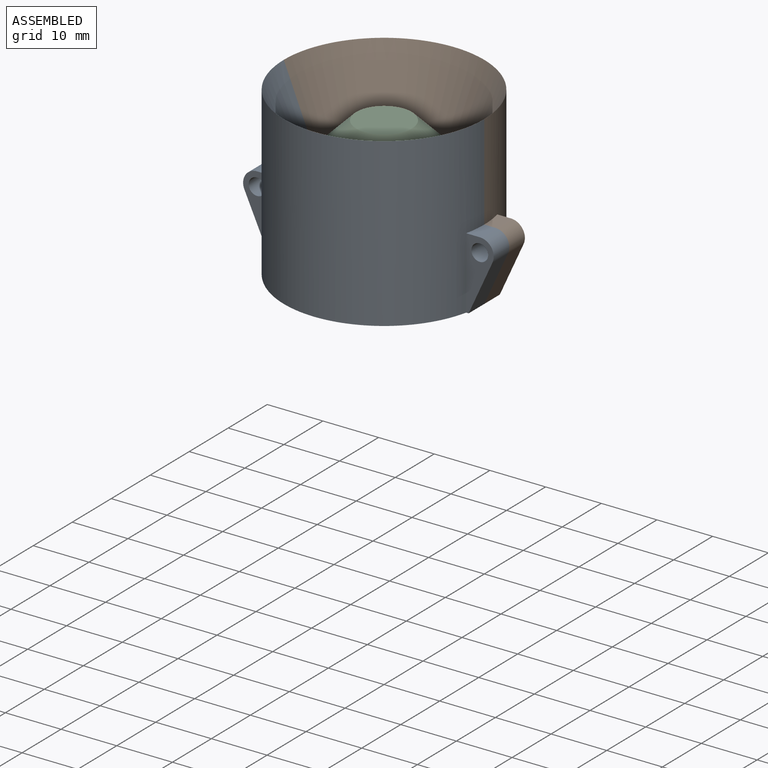
[diagram: assembled view]
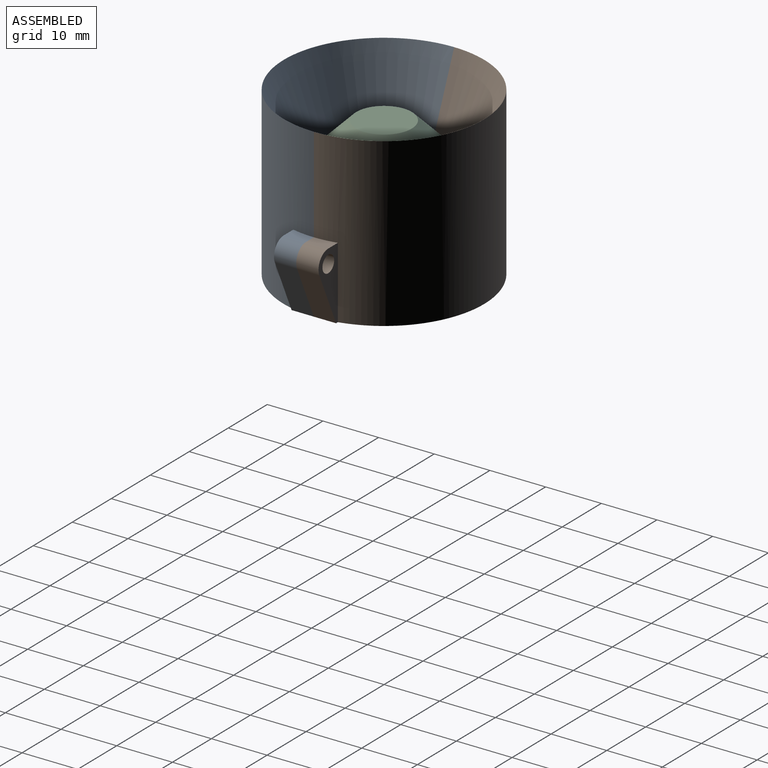
[diagram: assembled view, second angle]
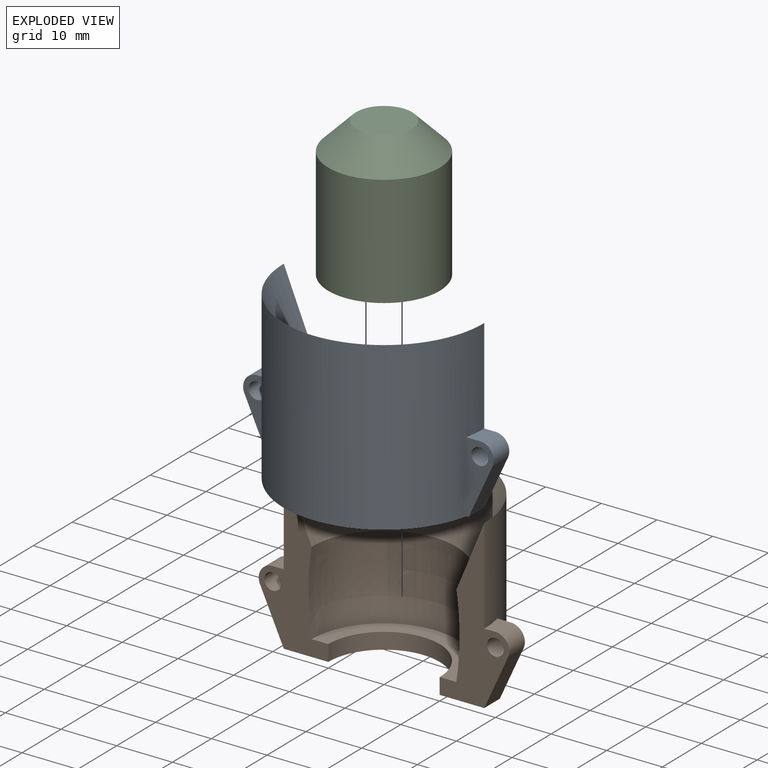
[diagram: exploded view]
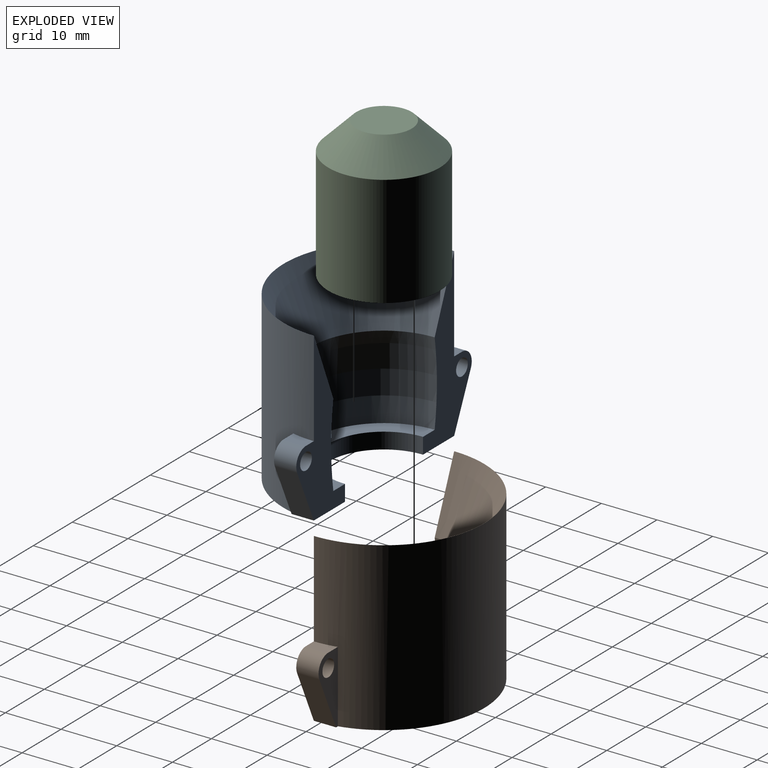
[diagram: exploded view, second angle]
FCSTD DOCUMENT  (FreeCAD 1.0R39109 (Git))
Label: WheelAssembley
License: All rights reserved
LicenseURL: https://en.wikipedia.org/wiki/All_rights_reserved
objects: App::Link×3, App::FeaturePython×3, Assembly::JointGroup×1, Assembly::AssemblyObject×1
EXTERNAL_REF file=wheeParts.FCStd obj=Body
EXTERNAL_REF file=wheeParts.FCStd obj=Body001

FEATURE [App::Link] Body
  LinkedObject = -> <external wheeParts.FCStd>#Body
FEATURE [App::FeaturePython] GroundedJoint  # Assembly grounded joint (typed FeaturePython)
  ObjectToGround = -> Body
FEATURE [App::Link] Body001
  LinkPlacement = pos=(0,0,0) rot=(0,0,1;3.14159rad)
  LinkedObject = -> <external wheeParts.FCStd>#Body
  Placement = pos=(0,0,0) rot=(0,0,1;3.14159rad)
FEATURE [App::Link] Body002
  LinkPlacement = pos=(-101.694,0,0) rot=(0,0,1;0rad)
  LinkedObject = -> <external wheeParts.FCStd>#Body001
  Placement = pos=(-101.694,0,0) rot=(0,0,1;0rad)
FEATURE [App::FeaturePython] Joint  label="Fixed"  # Assembly joint (typed FeaturePython)
  Activated = true
  AngleMax = 0
  AngleMin = 0
  Detach1 = false
  Detach2 = false
  Distance = 0
  Distance2 = 0
  EnableAngleMax = false
  EnableAngleMin = false
  EnableLengthMax = false
  EnableLengthMin = false
  JointType = 0 (Fixed)
  LengthMax = 0
  LengthMin = 0
  Placement1 = pos=(101.694,0,0) rot=(0,0,1;0rad)
  Placement2 = pos=(0,0,0) rot=(1,0,0;3.14159rad)
  Reference1 = -> Assembly [Body002.Edge1,Body002.Edge1]
  Reference2 = -> Assembly [Body.Edge5,Body.Edge5]
FEATURE [App::FeaturePython] Joint001  label="Fixed001"  # Assembly joint (typed FeaturePython)
  Activated = true
  AngleMax = 0
  AngleMin = 0
  Detach1 = false
  Detach2 = false
  Distance = 0
  Distance2 = 0
  EnableAngleMax = false
  EnableAngleMin = false
  EnableLengthMax = false
  EnableLengthMin = false
  JointType = 0 (Fixed)
  LengthMax = 0
  LengthMin = 0
  Offset2 = pos=(0,0,0) rot=(0,0,1;3.14159rad)
  Placement1 = pos=(0,0,0) rot=(1,0,0;3.14159rad)
  Placement2 = pos=(101.694,0,0) rot=(0,0,1;3.14159rad)
  Reference1 = -> Assembly [Body001.Edge5,Body001.Edge5]
  Reference2 = -> Assembly [Body002.Edge1,Body002.Edge1]
FEATURE [Assembly::JointGroup] Joints
  Group = -> [GroundedJoint,Joint,Joint001]
FEATURE [Assembly::AssemblyObject] Assembly
  Group = -> [Joints,Body,GroundedJoint,Body001,Body002,Joint,Joint001]
  Origin = -> Origin
  Type = Assembly

RESOLVED EXTERNAL PARTS (link-assembly join: the EXTERNAL_REF files above that resolve inside this repo's crawl, each included once):
---- part wheeParts.FCStd = doc fcstd_bda0fd9a3a3e ----
FCSTD DOCUMENT  (FreeCAD 1.0R39109 (Git))
Label: wheeParts
License: All rights reserved
LicenseURL: https://en.wikipedia.org/wiki/All_rights_reserved
objects: Sketcher::SketchObject×3, PartDesign::Revolution×2, PartDesign::Body×2, PartDesign::Pad×1
note: 17 computed .brp shape members not serialized (recipe doc carries the construction recipe); baked Part::Feature solids carry a one-line shape summary decoded from their .brp

FEATURE [Sketcher::SketchObject] Sketch
  ArcFitTolerance = 1e-06
  AttachmentSupport = -> [XZ_Plane]
  FullyConstrained = false
  MakeInternals = false
  MapMode = 5
  Placement = pos=(0,0,0) rot=(1,0,0;1.5708rad)
  sketch-geometry (7):
    g0: LineSegment StartX=10 StartY=2.88998 StartZ=0 EndX=13 EndY=2.88998 EndZ=0
    g1: LineSegment StartX=13 StartY=17.89 StartZ=0 EndX=18 EndY=30 EndZ=0
    g2: LineSegment StartX=18 StartY=30 StartZ=0 EndX=18 EndY=0 EndZ=0
    g3: LineSegment StartX=18 StartY=0 StartZ=0 EndX=10 EndY=0 EndZ=0
    g4: ArcOfCircle CenterX=-36.4343 CenterY=10.39 CenterZ=0 NormalX=0 NormalY=0 NormalZ=1 AngleXU=0 Radius=50 StartAngle=6.13262 EndAngle=6.43375
    g5: LineSegment [constr] StartX=13 StartY=17.89 StartZ=0 EndX=13 EndY=2.88998 EndZ=0
    g6: LineSegment StartX=10 StartY=2.88998 StartZ=0 EndX=10 EndY=0 EndZ=0
  constraints (19):
    c: Horizontal(g0)
    c: Coincident(g1,g2)
    c: PointOnObject(g2,g-1)
    c: Vertical(g2)
    c: Coincident(g2,g3)
    c: Coincident(g4,g1)
    c: Coincident(g4,g0)
    c: Coincident(g5,g1)
    c: Coincident(g5,g0)
    c: Vertical(g5)
    c: DistanceX(g0,g0) = 3
    c: DistanceY(g5,g5) = 15
    c: DistanceY(g2,g2) = 30
    c: Distance(g0,g2) = 5
    c: Vertical(g6)
    c: Coincident(g3,g6)
    c: Distance(g-2,g6) = 10
    c: Coincident(g0,g6)
    c: Radius(g4) = 50
FEATURE [PartDesign::Revolution] Revolution
  Angle = 180
  Angle2 = 60
  Axis = (0,2e-16,1)
  Base = (0,0,0)
  Placement = pos=(0,0,0) rot=(1,0,0;1.5708rad)
  Profile = -> Sketch
  ReferenceAxis = -> Sketch [V_Axis]
  Refine = true
  Reversed = true
  Suppressed = false
  Type = 0
FEATURE [Sketcher::SketchObject] Sketch001
  ArcFitTolerance = 1e-06
  AttachmentSupport = -> [Revolution]
  ExternalGeometry = -> [Revolution]
  FullyConstrained = false
  MakeInternals = false
  MapMode = 5
  Placement = pos=(0,2.9e-15,0) rot=(-1,0,0;1.5708rad)
  sketch-geometry (18):
    g0: LineSegment [constr] StartX=-13 StartY=-2.88998 StartZ=0 EndX=-13 EndY=-17.89 EndZ=0
    g1: LineSegment [constr] StartX=-23.6863 StartY=-10.39 StartZ=0 EndX=28.8123 EndY=-10.39 EndZ=0
    g2: GeomPoint [constr] X=-13 Y=-10.39 Z=0
    g3: Circle CenterX=-20 CenterY=-10.39 CenterZ=0 NormalX=0 NormalY=0 NormalZ=1 AngleXU=0 Radius=1.5
    g4: ArcOfCircle CenterX=-20 CenterY=-10.39 CenterZ=0 NormalX=0 NormalY=0 NormalZ=1 AngleXU=0 Radius=2.5 StartAngle=2.71289 EndAngle=4.71239
    g5: LineSegment StartX=-16 StartY=-7.05379 StartZ=0 EndX=-16 EndY=-12.89 EndZ=0
    g6: LineSegment StartX=-20 StartY=-12.89 StartZ=0 EndX=-16 EndY=-12.89 EndZ=0
    g7: LineSegment StartX=-18 StartY=0 StartZ=0 EndX=-22.2738 EndY=-9.35076 EndZ=0
    g8: LineSegment StartX=-16 StartY=-7.05379 StartZ=0 EndX=-16 EndY=0 EndZ=0
    g9: LineSegment StartX=-16 StartY=0 StartZ=0 EndX=-18 EndY=0 EndZ=0
    g10: LineSegment [constr] StartX=23.6863 StartY=-10.39 StartZ=0 EndX=-28.8123 EndY=-10.39 EndZ=0
    g11: Circle CenterX=20 CenterY=-10.39 CenterZ=0 NormalX=0 NormalY=0 NormalZ=1 AngleXU=0 Radius=1.5
    g12: ArcOfCircle CenterX=20 CenterY=-10.39 CenterZ=0 NormalX=0 NormalY=0 NormalZ=1 AngleXU=0 Radius=2.5 StartAngle=4.71239 EndAngle=6.71189
    g13: LineSegment StartX=16 StartY=-7.05379 StartZ=0 EndX=16 EndY=-12.89 EndZ=0
    g14: LineSegment StartX=20 StartY=-12.89 StartZ=0 EndX=16 EndY=-12.89 EndZ=0
    g15: LineSegment StartX=18 StartY=0 StartZ=0 EndX=22.2738 EndY=-9.35076 EndZ=0
    g16: LineSegment StartX=16 StartY=-7.05379 StartZ=0 EndX=16 EndY=0 EndZ=0
    g17: LineSegment StartX=16 StartY=0 StartZ=0 EndX=18 EndY=0 EndZ=0
  constraints (39):
    c: Coincident(g0,g-12)
    c: Coincident(g0,g-13)
    c: Horizontal(g1)
    c: Symmetric(g0,g0,g2)
    c: PointOnObject(g2,g1)
    c: Diameter(g3) = 3
    c: PointOnObject(g3,g1)
    c: Coincident(g4,g3)
    c: Vertical(g5)
    c: Coincident(g6,g5)
    c: Horizontal(g6)
    c: Distance(g5,g-7) = 2
    c: Distance(g3,g-7) = 2
    c: Tangent(g6,g4) = -1.5708
    c: Coincident(g7,g-7)
    c: Tangent(g7,g4) = -1.5708
    c: Radius(g4) = 2.5
    c: Coincident(g8,g5)
    c: PointOnObject(g8,g-1)
    c: Vertical(g8)
    c: Coincident(g9,g8)
    c: Coincident(g9,g7)
    c: Symmetric(g1,g10,g-2)
    c: Symmetric(g1,g10,g-2)
    c: Equal(g3,g11)
    c: Symmetric(g3,g11,g-2)
    c: Equal(g4,g12)
    c: Symmetric(g4,g12,g-2)
    c: Symmetric(g4,g12,g-2)
    c: Symmetric(g5,g13,g-2)
    c: Symmetric(g5,g13,g-2)
    c: Symmetric(g6,g14,g-2)
    c: Symmetric(g6,g14,g-2)
    c: Symmetric(g7,g15,g-2)
    c: Symmetric(g7,g15,g-2)
    c: Symmetric(g8,g16,g-2)
    c: Symmetric(g8,g16,g-2)
    c: Symmetric(g9,g17,g-2)
    c: Symmetric(g9,g17,g-2)
FEATURE [PartDesign::Pad] Pad
  BaseFeature = -> Revolution
  Direction = (0,1,2e-16)
  Length = 4
  Length2 = 10
  Placement = pos=(0,0,0) rot=(1,0,0;1.5708rad)
  Profile = -> Sketch001
  ReferenceAxis = -> Sketch001 [N_Axis]
  Refine = true
  Reversed = true
  Suppressed = false
  Type = 0
FEATURE [PartDesign::Body] Body
  AllowCompound = false
  Group = -> [Sketch,Revolution,Sketch001,Pad]
  Origin = -> Origin
  Tip = -> Pad
FEATURE [Sketcher::SketchObject] Sketch002
  ArcFitTolerance = 1e-06
  AttachmentSupport = -> [XZ_Plane001]
  FullyConstrained = false
  MakeInternals = false
  MapMode = 5
  Placement = pos=(0,0,0) rot=(1,0,0;1.5708rad)
  sketch-geometry (6):
    g0: LineSegment [constr] StartX=101.694 StartY=0 StartZ=0 EndX=101.694 EndY=42.2928 EndZ=0
    g1: LineSegment StartX=101.694 StartY=0 StartZ=0 EndX=111.714 EndY=0 EndZ=0
    g2: LineSegment StartX=111.714 StartY=0 StartZ=0 EndX=111.714 EndY=20 EndZ=0
    g3: LineSegment StartX=111.714 StartY=20 StartZ=0 EndX=106.694 EndY=25 EndZ=0
    g4: LineSegment StartX=106.694 StartY=25 StartZ=0 EndX=101.694 EndY=25 EndZ=0
    g5: LineSegment StartX=101.694 StartY=25 StartZ=0 EndX=101.694 EndY=0 EndZ=0
  constraints (16):
    c: PointOnObject(g0,g-1)
    c: Vertical(g0)
    c: Coincident(g0,g1)
    c: PointOnObject(g1,g-1)
    c: Coincident(g1,g2)
    c: Vertical(g2)
    c: Coincident(g2,g3)
    c: Coincident(g3,g4)
    c: PointOnObject(g4,g0)
    c: Coincident(g4,g5)
    c: Coincident(g5,g1)
    c: DistanceX(g1,g1) = 10.02
    c: DistanceY(g2,g2) = 20
    c: Horizontal(g4)
    c: Distance(g2,g4) = 5
    c: DistanceX(g4,g4) = 5
FEATURE [PartDesign::Revolution] Revolution001
  Angle = 360
  Angle2 = 60
  Axis = (0,-2e-16,-1)
  Base = (101.694,5.6e-15,25)
  Placement = pos=(0,0,0) rot=(1,0,0;1.5708rad)
  Profile = -> Sketch002
  ReferenceAxis = -> Sketch002 [Edge5]
  Refine = true
  Reversed = true
  Suppressed = false
  Type = 0
FEATURE [PartDesign::Body] Body001
  AllowCompound = false
  Group = -> [Sketch002,Revolution001]
  Origin = -> Origin001
  Tip = -> Revolution001
